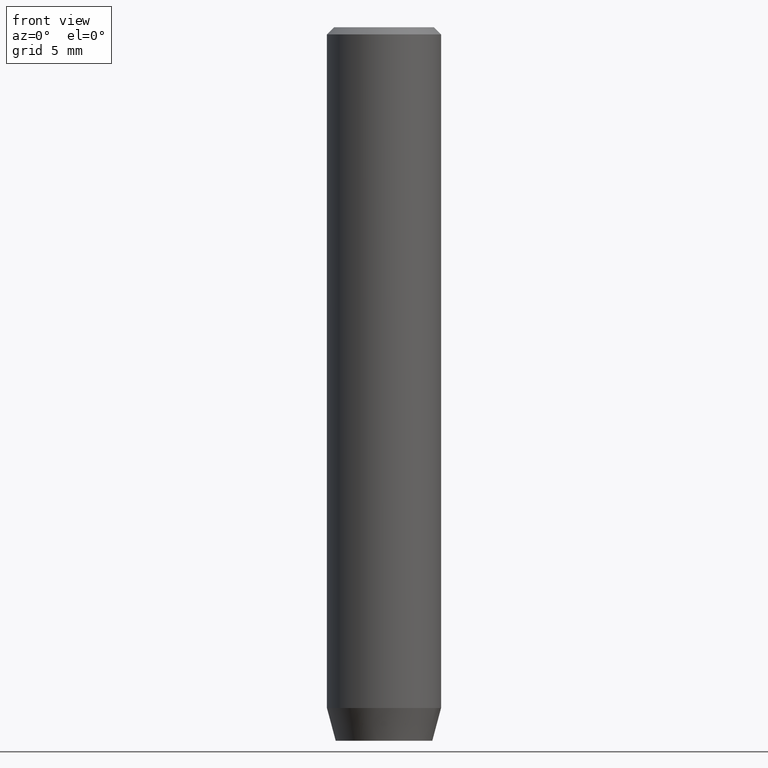
[diagram: clean part render]
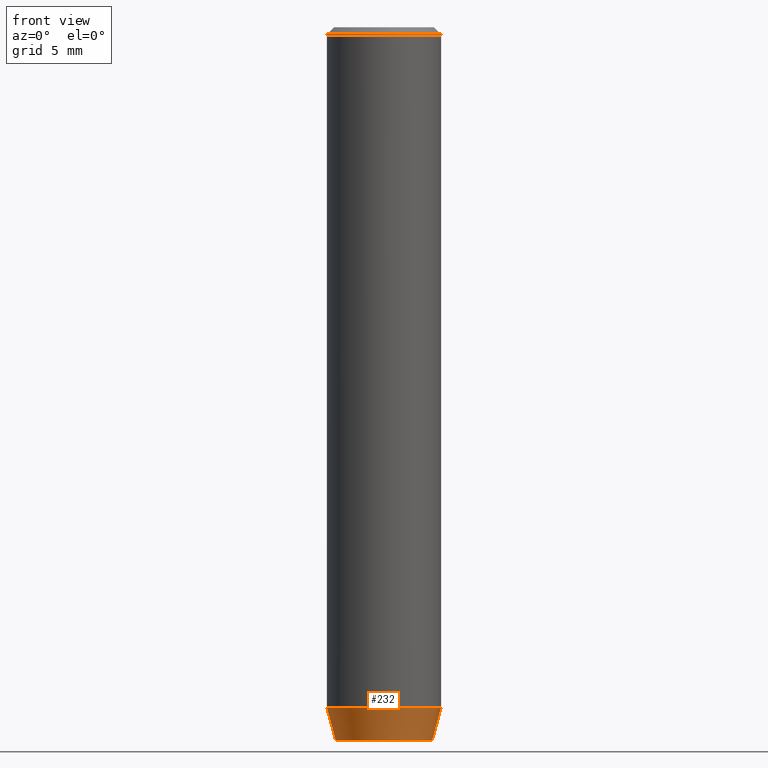
[diagram: same view with one face highlighted and labeled with its STEP entity id]
A machine part, front view. The second image highlights one B-rep face of the part: STEP entity #232.
In plain terms, the highlighted conical surface has half-angle 15 deg.
Its self-contained STEP definition (entity closure, byte-faithful):
#12 = CARTESIAN_POINT ( 'NONE',  ( 4.000000000000000000, 0.000000000000000000, -47.70000000000000284 ) ) ;
#14 = CIRCLE ( 'NONE', #214, 3.383716857408417766 ) ;
#34 = DIRECTION ( 'NONE',  ( -0.000000000000000000, -0.000000000000000000, 1.000000000000000000 ) ) ;
#60 = ORIENTED_EDGE ( 'NONE', *, *, #203, .T. ) ;
#70 = DIRECTION ( 'NONE',  ( -0.000000000000000000, -0.000000000000000000, 1.000000000000000000 ) ) ;
#87 = DIRECTION ( 'NONE',  ( -0.2588190451025210725, 3.169619151431769255E-17, 0.9659258262890680902 ) ) ;
#97 = VERTEX_POINT ( 'NONE', #267 ) ;
#102 = VERTEX_POINT ( 'NONE', #361 ) ;
#106 = CIRCLE ( 'NONE', #170, 4.000000000000000000 ) ;
#122 = CARTESIAN_POINT ( 'NONE',  ( -4.000000000000000000, 4.898587196589412829E-16, -47.70000000000000284 ) ) ;
#133 = AXIS2_PLACEMENT_3D ( 'NONE', #464, #326, #222 ) ;
#141 = DIRECTION ( 'NONE',  ( 0.2588190451025210725, 0.000000000000000000, 0.9659258262890680902 ) ) ;
#156 = CARTESIAN_POINT ( 'NONE',  ( 0.000000000000000000, 0.000000000000000000, -47.70000000000000284 ) ) ;
#160 = EDGE_CURVE ( 'NONE', #97, #185, #168, .T. ) ;
#167 = EDGE_CURVE ( 'NONE', #97, #102, #14, .T. ) ;
#168 = LINE ( 'NONE', #122, #441 ) ;
#170 = AXIS2_PLACEMENT_3D ( 'NONE', #156, #70, #341 ) ;
#181 = LINE ( 'NONE', #554, #200 ) ;
#185 = VERTEX_POINT ( 'NONE', #230 ) ;
#197 = VERTEX_POINT ( 'NONE', #12 ) ;
#200 = VECTOR ( 'NONE', #141, 1000.000000000000114 ) ;
#203 = EDGE_CURVE ( 'NONE', #102, #197, #181, .T. ) ;
#214 = AXIS2_PLACEMENT_3D ( 'NONE', #538, #34, #398 ) ;
#222 = DIRECTION ( 'NONE',  ( 1.000000000000000000, 0.000000000000000000, 0.000000000000000000 ) ) ;
#230 = CARTESIAN_POINT ( 'NONE',  ( -4.000000000000000000, 4.898587196589412829E-16, -47.70000000000000284 ) ) ;
#232 = ADVANCED_FACE ( 'NONE', ( #514 ), #316, .T. ) ;
#267 = CARTESIAN_POINT ( 'NONE',  ( -3.383716857408417766, 4.521222607617785469E-16, -50.00000000000000000 ) ) ;
#307 = ORIENTED_EDGE ( 'NONE', *, *, #167, .T. ) ;
#316 = CONICAL_SURFACE ( 'NONE', #133, 4.000000000000000000, 0.2617993877991497964 ) ;
#326 = DIRECTION ( 'NONE',  ( -0.000000000000000000, -0.000000000000000000, 1.000000000000000000 ) ) ;
#341 = DIRECTION ( 'NONE',  ( 1.000000000000000000, 0.000000000000000000, 0.000000000000000000 ) ) ;
#349 = EDGE_CURVE ( 'NONE', #185, #197, #106, .T. ) ;
#361 = CARTESIAN_POINT ( 'NONE',  ( 3.383716857408417766, 0.000000000000000000, -50.00000000000000000 ) ) ;
#365 = ORIENTED_EDGE ( 'NONE', *, *, #349, .F. ) ;
#376 = EDGE_LOOP ( 'NONE', ( #417, #307, #60, #365 ) ) ;
#398 = DIRECTION ( 'NONE',  ( 1.000000000000000000, 0.000000000000000000, 0.000000000000000000 ) ) ;
#417 = ORIENTED_EDGE ( 'NONE', *, *, #160, .F. ) ;
#441 = VECTOR ( 'NONE', #87, 1000.000000000000114 ) ;
#464 = CARTESIAN_POINT ( 'NONE',  ( 0.000000000000000000, 0.000000000000000000, -47.70000000000000284 ) ) ;
#514 = FACE_OUTER_BOUND ( 'NONE', #376, .T. ) ;
#538 = CARTESIAN_POINT ( 'NONE',  ( 0.000000000000000000, 0.000000000000000000, -50.00000000000000000 ) ) ;
#554 = CARTESIAN_POINT ( 'NONE',  ( 4.000000000000000000, 0.000000000000000000, -47.70000000000000284 ) ) ;